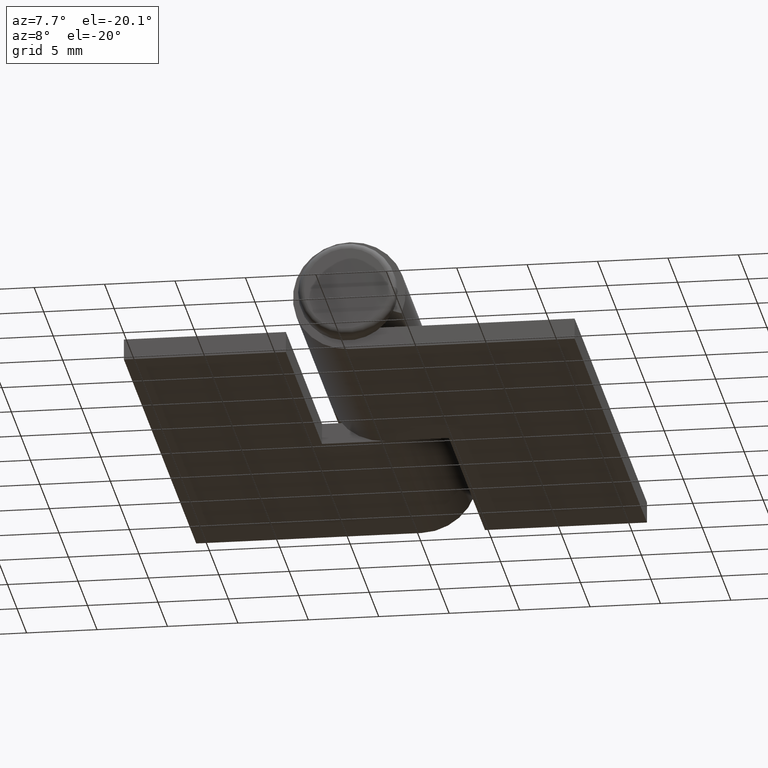
[diagram: clean part render]
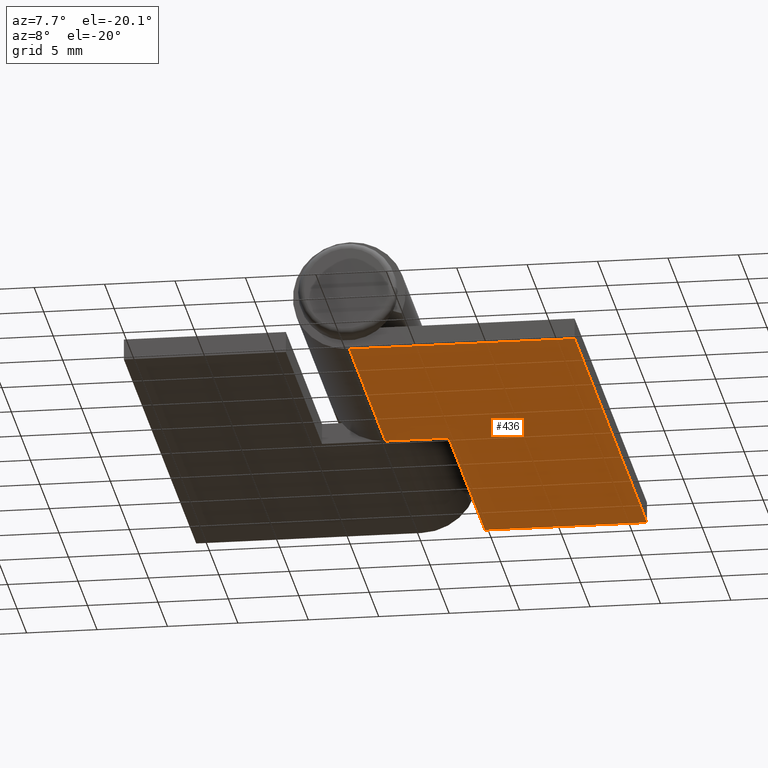
[diagram: same view with one face highlighted and labeled with its STEP entity id]
A machine part, auxiliary view. The second image highlights one B-rep face of the part: STEP entity #436.
In plain terms, the highlighted planar face has unit normal (-0, -0, -1).
Its self-contained STEP definition (entity closure, byte-faithful):
#56=FACE_OUTER_BOUND('',#84,.T.);
#84=EDGE_LOOP('',(#353,#354,#355,#356,#357,#358));
#129=LINE('',#703,#169);
#132=LINE('',#709,#172);
#133=LINE('',#712,#173);
#134=LINE('',#714,#174);
#135=LINE('',#716,#175);
#136=LINE('',#717,#176);
#169=VECTOR('',#564,4.5);
#172=VECTOR('',#569,19.);
#173=VECTOR('',#572,11.5);
#174=VECTOR('',#573,38.);
#175=VECTOR('',#574,16.);
#176=VECTOR('',#575,19.);
#218=VERTEX_POINT('',#693);
#222=VERTEX_POINT('',#701);
#224=VERTEX_POINT('',#707);
#225=VERTEX_POINT('',#711);
#226=VERTEX_POINT('',#713);
#227=VERTEX_POINT('',#715);
#269=EDGE_CURVE('',#218,#222,#129,.T.);
#272=EDGE_CURVE('',#222,#224,#132,.T.);
#273=EDGE_CURVE('',#224,#225,#133,.T.);
#274=EDGE_CURVE('',#226,#225,#134,.T.);
#275=EDGE_CURVE('',#227,#226,#135,.T.);
#276=EDGE_CURVE('',#227,#218,#136,.T.);
#353=ORIENTED_EDGE('',*,*,#269,.T.);
#354=ORIENTED_EDGE('',*,*,#272,.T.);
#355=ORIENTED_EDGE('',*,*,#273,.T.);
#356=ORIENTED_EDGE('',*,*,#274,.F.);
#357=ORIENTED_EDGE('',*,*,#275,.F.);
#358=ORIENTED_EDGE('',*,*,#276,.T.);
#415=PLANE('',#475);
#436=ADVANCED_FACE('',(#56),#415,.T.);
#475=AXIS2_PLACEMENT_3D('',#710,#570,#571);
#564=DIRECTION('',(-1.,-1.21430643318377E-16,-2.61228946970625E-16));
#569=DIRECTION('',(-2.92163953848725E-16,-3.54776568702912E-32,1.));
#570=DIRECTION('center_axis',(1.21430643318377E-16,-1.,0.));
#571=DIRECTION('ref_axis',(0.,0.,-1.));
#572=DIRECTION('',(-1.,-1.21430643318377E-16,0.));
#573=DIRECTION('',(0.,0.,1.));
#574=DIRECTION('',(-1.,-1.21430643318377E-16,0.));
#575=DIRECTION('',(0.,0.,1.));
#693=CARTESIAN_POINT('',(6.52527926536371E-17,0.,19.));
#701=CARTESIAN_POINT('',(-4.5,-5.46437894932694E-16,19.));
#703=CARTESIAN_POINT('',(-2.25,-2.73218947466347E-16,19.));
#707=CARTESIAN_POINT('',(-4.50000000000001,-5.46437894932695E-16,38.));
#709=CARTESIAN_POINT('',(-4.5,-5.46437894932694E-16,19.));
#710=CARTESIAN_POINT('Origin',(0.,0.,0.));
#711=CARTESIAN_POINT('',(-16.,-1.94289029309402E-15,38.));
#712=CARTESIAN_POINT('',(0.,0.,38.));
#713=CARTESIAN_POINT('',(-16.,-1.94289029309402E-15,0.));
#714=CARTESIAN_POINT('',(-16.,-1.94289029309402E-15,0.));
#715=CARTESIAN_POINT('',(0.,0.,0.));
#716=CARTESIAN_POINT('',(0.,0.,0.));
#717=CARTESIAN_POINT('',(0.,0.,0.));